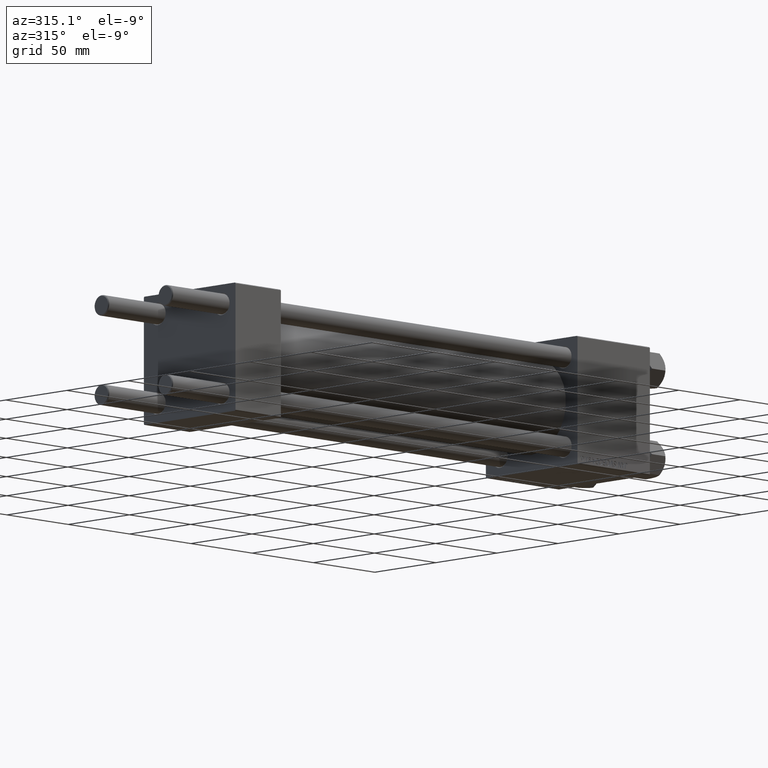
[diagram: clean part render]
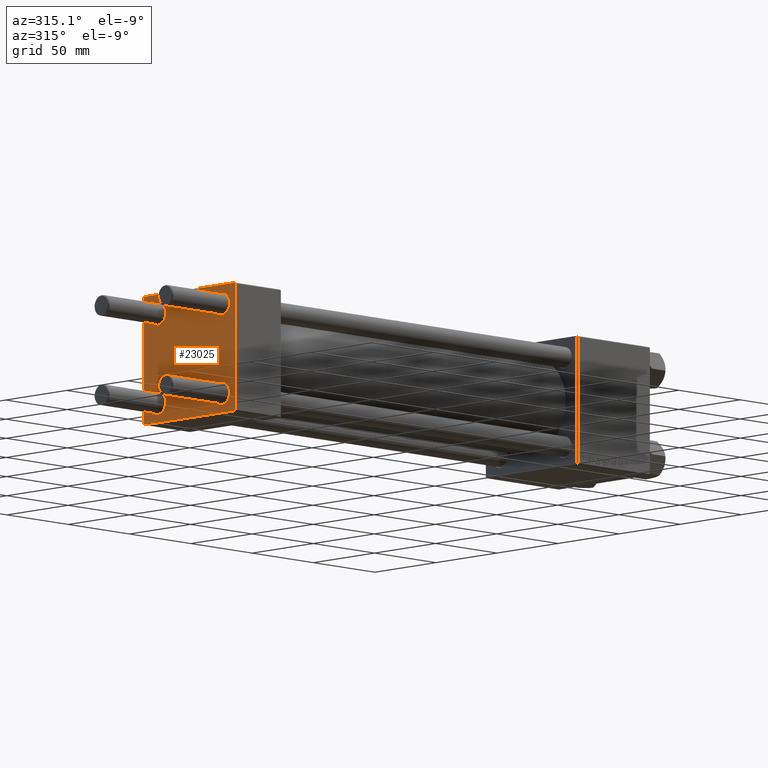
[diagram: same view with one face highlighted and labeled with its STEP entity id]
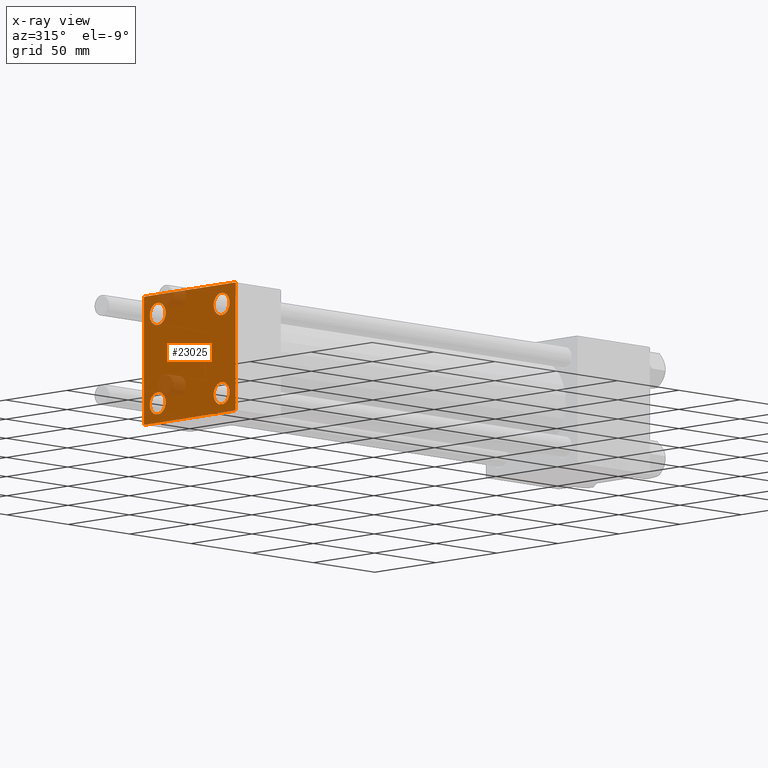
[diagram: x-ray of the same camera — body ghosted, the highlighted face saturated]
A machine part, auxiliary view. The second image highlights one B-rep face of the part: STEP entity #23025.
The next image is the same camera in x-ray: the body ghosted, the highlighted face saturated — about 8% of this face is hidden behind the body in this view.
In plain terms, the highlighted planar face has unit normal (-1, 0, 0).
Its self-contained STEP definition (entity closure, byte-faithful):
#508 = CIRCLE ( 'NONE', #9371, 6.500000000000023093 ) ;
#772 = CIRCLE ( 'NONE', #29800, 6.500000000000023093 ) ;
#1084 = EDGE_CURVE ( 'NONE', #6954, #1653, #20436, .T. ) ;
#1541 = VECTOR ( 'NONE', #11533, 1000.000000000000000 ) ;
#1653 = VERTEX_POINT ( 'NONE', #20803 ) ;
#1972 = AXIS2_PLACEMENT_3D ( 'NONE', #31772, #35054, #19404 ) ;
#2709 = CARTESIAN_POINT ( 'NONE',  ( 0.000000000000000000, -37.24999999999975842, -37.25000000000027001 ) ) ;
#3071 = ORIENTED_EDGE ( 'NONE', *, *, #1084, .T. ) ;
#3298 = AXIS2_PLACEMENT_3D ( 'NONE', #26902, #11999, #19830 ) ;
#3645 = VECTOR ( 'NONE', #17709, 1000.000000000000000 ) ;
#3758 = EDGE_CURVE ( 'NONE', #43962, #7169, #772, .T. ) ;
#4235 = ORIENTED_EDGE ( 'NONE', *, *, #27655, .T. ) ;
#4237 = CARTESIAN_POINT ( 'NONE',  ( 0.000000000000000000, 26.14999999999999858, 26.15000000000000213 ) ) ;
#4664 = FACE_BOUND ( 'NONE', #45915, .T. ) ;
#5030 = DIRECTION ( 'NONE',  ( 0.000000000000000000, 0.000000000000000000, 1.000000000000000000 ) ) ;
#5090 = CARTESIAN_POINT ( 'NONE',  ( 0.000000000000000000, -26.14999999999999147, 26.15000000000000924 ) ) ;
#5263 = CARTESIAN_POINT ( 'NONE',  ( 0.000000000000000000, 26.14999999999999858, 19.64999999999998437 ) ) ;
#5805 = AXIS2_PLACEMENT_3D ( 'NONE', #45360, #49387, #41327 ) ;
#6695 = ORIENTED_EDGE ( 'NONE', *, *, #36704, .T. ) ;
#6954 = VERTEX_POINT ( 'NONE', #24999 ) ;
#7169 = VERTEX_POINT ( 'NONE', #43851 ) ;
#7288 = EDGE_CURVE ( 'NONE', #23763, #1653, #38529, .T. ) ;
#7313 = CARTESIAN_POINT ( 'NONE',  ( 0.000000000000000000, 26.14999999999999858, -26.15000000000000213 ) ) ;
#7707 = PLANE ( 'NONE',  #3298 ) ;
#7845 = VERTEX_POINT ( 'NONE', #25262 ) ;
#8447 = EDGE_LOOP ( 'NONE', ( #38399, #26246 ) ) ;
#9371 = AXIS2_PLACEMENT_3D ( 'NONE', #5090, #40673, #35658 ) ;
#9801 = LINE ( 'NONE', #25203, #19959 ) ;
#11079 = EDGE_LOOP ( 'NONE', ( #42274, #45895 ) ) ;
#11480 = VECTOR ( 'NONE', #18120, 1000.000000000000000 ) ;
#11500 = FACE_BOUND ( 'NONE', #8447, .T. ) ;
#11533 = DIRECTION ( 'NONE',  ( 0.000000000000000000, -1.000000000000000000, -9.251858538542971581E-17 ) ) ;
#11917 = EDGE_LOOP ( 'NONE', ( #34391, #21610 ) ) ;
#11999 = DIRECTION ( 'NONE',  ( -1.000000000000000000, 0.000000000000000000, -0.000000000000000000 ) ) ;
#13056 = VERTEX_POINT ( 'NONE', #15122 ) ;
#13483 = EDGE_CURVE ( 'NONE', #20319, #47296, #32402, .T. ) ;
#13631 = VERTEX_POINT ( 'NONE', #33653 ) ;
#14897 = CARTESIAN_POINT ( 'NONE',  ( 0.000000000000000000, -37.00000000000002132, -37.50000000000000711 ) ) ;
#15035 = CARTESIAN_POINT ( 'NONE',  ( 0.000000000000000000, 37.49999999999999289, 37.00000000000000000 ) ) ;
#15122 = CARTESIAN_POINT ( 'NONE',  ( 0.000000000000000000, -26.14999999999999147, 19.64999999999999147 ) ) ;
#15630 = ORIENTED_EDGE ( 'NONE', *, *, #7288, .F. ) ;
#16645 = DIRECTION ( 'NONE',  ( -0.000000000000000000, 0.7071067811865474617, 0.7071067811865474617 ) ) ;
#17658 = DIRECTION ( 'NONE',  ( 0.000000000000000000, 0.7071067811865474617, -0.7071067811865474617 ) ) ;
#17709 = DIRECTION ( 'NONE',  ( 0.000000000000000000, -1.000000000000000000, -9.251858538542972814E-17 ) ) ;
#18120 = DIRECTION ( 'NONE',  ( 0.000000000000000000, -0.7071067811865524577, 0.7071067811865426878 ) ) ;
#18652 = CARTESIAN_POINT ( 'NONE',  ( 0.000000000000000000, 26.14999999999999858, -19.64999999999998792 ) ) ;
#19119 = CARTESIAN_POINT ( 'NONE',  ( 0.000000000000000000, 26.14999999999999858, -32.65000000000001990 ) ) ;
#19404 = DIRECTION ( 'NONE',  ( 0.000000000000000000, 0.000000000000000000, 1.000000000000000000 ) ) ;
#19449 = AXIS2_PLACEMENT_3D ( 'NONE', #25728, #44895, #32792 ) ;
#19830 = DIRECTION ( 'NONE',  ( -0.000000000000000000, 0.000000000000000000, 1.000000000000000000 ) ) ;
#19959 = VECTOR ( 'NONE', #40593, 1000.000000000000000 ) ;
#20240 = EDGE_CURVE ( 'NONE', #6954, #29141, #44899, .T. ) ;
#20319 = VERTEX_POINT ( 'NONE', #18652 ) ;
#20436 = LINE ( 'NONE', #27790, #36944 ) ;
#20803 = CARTESIAN_POINT ( 'NONE',  ( 0.000000000000000000, -37.00000000000000711, 37.49999999999999289 ) ) ;
#20939 = VERTEX_POINT ( 'NONE', #24730 ) ;
#20978 = EDGE_CURVE ( 'NONE', #23763, #39329, #35850, .T. ) ;
#21300 = CIRCLE ( 'NONE', #36612, 6.500000000000015987 ) ;
#21610 = ORIENTED_EDGE ( 'NONE', *, *, #3758, .T. ) ;
#22175 = DIRECTION ( 'NONE',  ( 1.000000000000000000, -0.000000000000000000, 0.000000000000000000 ) ) ;
#23025 = ADVANCED_FACE ( 'NONE', ( #11500, #4664, #39253, #42273, #43027 ), #7707, .T. ) ;
#23056 = EDGE_CURVE ( 'NONE', #7169, #43962, #39578, .T. ) ;
#23763 = VERTEX_POINT ( 'NONE', #25854 ) ;
#24730 = CARTESIAN_POINT ( 'NONE',  ( 0.000000000000000000, -26.14999999999999147, -19.64999999999999503 ) ) ;
#24999 = CARTESIAN_POINT ( 'NONE',  ( 0.000000000000000000, -37.50000000000000711, 36.99999999999999289 ) ) ;
#25203 = CARTESIAN_POINT ( 'NONE',  ( 0.000000000000000000, 37.49999999999999289, 37.50000000000000000 ) ) ;
#25262 = CARTESIAN_POINT ( 'NONE',  ( 0.000000000000000000, -26.14999999999999147, 32.65000000000003411 ) ) ;
#25728 = CARTESIAN_POINT ( 'NONE',  ( 0.000000000000000000, 26.14999999999999858, 26.15000000000000213 ) ) ;
#25854 = CARTESIAN_POINT ( 'NONE',  ( 0.000000000000000000, 36.99999999999999289, 37.50000000000000000 ) ) ;
#26236 = CARTESIAN_POINT ( 'NONE',  ( 0.000000000000000000, -37.50000000000000711, 37.49999999999999289 ) ) ;
#26246 = ORIENTED_EDGE ( 'NONE', *, *, #40104, .T. ) ;
#26721 = AXIS2_PLACEMENT_3D ( 'NONE', #43637, #35345, #5030 ) ;
#26725 = ORIENTED_EDGE ( 'NONE', *, *, #20978, .T. ) ;
#26841 = DIRECTION ( 'NONE',  ( -0.000000000000000000, -0.7071067811865474617, -0.7071067811865474617 ) ) ;
#26902 = CARTESIAN_POINT ( 'NONE',  ( 0.000000000000000000, 0.000000000000000000, 0.000000000000000000 ) ) ;
#27394 = ORIENTED_EDGE ( 'NONE', *, *, #20240, .F. ) ;
#27564 = ORIENTED_EDGE ( 'NONE', *, *, #40042, .T. ) ;
#27655 = EDGE_CURVE ( 'NONE', #39568, #20939, #48467, .T. ) ;
#27790 = CARTESIAN_POINT ( 'NONE',  ( -0.000000000000000000, -37.25000000000000000, 37.25000000000000000 ) ) ;
#28587 = CIRCLE ( 'NONE', #1972, 6.500000000000023093 ) ;
#29141 = VERTEX_POINT ( 'NONE', #38406 ) ;
#29391 = CARTESIAN_POINT ( 'NONE',  ( 0.000000000000000000, -26.14999999999999147, -32.65000000000002700 ) ) ;
#29769 = DIRECTION ( 'NONE',  ( 0.000000000000000000, 9.251858538542971581E-17, -1.000000000000000000 ) ) ;
#29800 = AXIS2_PLACEMENT_3D ( 'NONE', #4237, #43337, #39559 ) ;
#29873 = EDGE_CURVE ( 'NONE', #46988, #29141, #37298, .T. ) ;
#30025 = ORIENTED_EDGE ( 'NONE', *, *, #44149, .T. ) ;
#30030 = CIRCLE ( 'NONE', #43693, 6.500000000000015987 ) ;
#30620 = LINE ( 'NONE', #34913, #45550 ) ;
#31772 = CARTESIAN_POINT ( 'NONE',  ( 0.000000000000000000, -26.14999999999999147, 26.15000000000000924 ) ) ;
#32402 = CIRCLE ( 'NONE', #5805, 6.500000000000015987 ) ;
#32591 = CARTESIAN_POINT ( 'NONE',  ( 0.000000000000000000, 36.99999999999997868, -37.50000000000000000 ) ) ;
#32792 = DIRECTION ( 'NONE',  ( 0.000000000000000000, 0.000000000000000000, 1.000000000000000000 ) ) ;
#33653 = CARTESIAN_POINT ( 'NONE',  ( 0.000000000000000000, 37.49999999999999289, -36.99999999999998579 ) ) ;
#33786 = DIRECTION ( 'NONE',  ( 0.000000000000000000, 0.000000000000000000, 1.000000000000000000 ) ) ;
#33912 = VECTOR ( 'NONE', #17658, 1000.000000000000114 ) ;
#34391 = ORIENTED_EDGE ( 'NONE', *, *, #23056, .T. ) ;
#34821 = DIRECTION ( 'NONE',  ( 1.000000000000000000, -0.000000000000000000, 0.000000000000000000 ) ) ;
#34913 = CARTESIAN_POINT ( 'NONE',  ( 0.000000000000000000, 37.24999999999998579, -37.24999999999998579 ) ) ;
#35054 = DIRECTION ( 'NONE',  ( 1.000000000000000000, -0.000000000000000000, 0.000000000000000000 ) ) ;
#35345 = DIRECTION ( 'NONE',  ( 1.000000000000000000, -0.000000000000000000, 0.000000000000000000 ) ) ;
#35460 = EDGE_CURVE ( 'NONE', #7845, #13056, #28587, .T. ) ;
#35658 = DIRECTION ( 'NONE',  ( 0.000000000000000000, 0.000000000000000000, 1.000000000000000000 ) ) ;
#35850 = LINE ( 'NONE', #44902, #33912 ) ;
#36612 = AXIS2_PLACEMENT_3D ( 'NONE', #7313, #34821, #38855 ) ;
#36704 = EDGE_CURVE ( 'NONE', #43767, #46988, #48233, .T. ) ;
#36944 = VECTOR ( 'NONE', #16645, 1000.000000000000114 ) ;
#37095 = ORIENTED_EDGE ( 'NONE', *, *, #29873, .T. ) ;
#37298 = LINE ( 'NONE', #2709, #11480 ) ;
#38286 = CARTESIAN_POINT ( 'NONE',  ( 0.000000000000000000, 37.49999999999999289, 37.50000000000000000 ) ) ;
#38399 = ORIENTED_EDGE ( 'NONE', *, *, #35460, .T. ) ;
#38406 = CARTESIAN_POINT ( 'NONE',  ( 0.000000000000000000, -37.50000000000000000, -37.00000000000003553 ) ) ;
#38529 = LINE ( 'NONE', #38286, #1541 ) ;
#38855 = DIRECTION ( 'NONE',  ( 0.000000000000000000, 0.000000000000000000, 1.000000000000000000 ) ) ;
#39253 = FACE_BOUND ( 'NONE', #11079, .T. ) ;
#39329 = VERTEX_POINT ( 'NONE', #15035 ) ;
#39559 = DIRECTION ( 'NONE',  ( 0.000000000000000000, 0.000000000000000000, 1.000000000000000000 ) ) ;
#39568 = VERTEX_POINT ( 'NONE', #29391 ) ;
#39578 = CIRCLE ( 'NONE', #19449, 6.500000000000023093 ) ;
#40042 = EDGE_CURVE ( 'NONE', #13631, #43767, #30620, .T. ) ;
#40104 = EDGE_CURVE ( 'NONE', #13056, #7845, #508, .T. ) ;
#40593 = DIRECTION ( 'NONE',  ( 0.000000000000000000, 0.000000000000000000, -1.000000000000000000 ) ) ;
#40673 = DIRECTION ( 'NONE',  ( 1.000000000000000000, -0.000000000000000000, 0.000000000000000000 ) ) ;
#41327 = DIRECTION ( 'NONE',  ( 0.000000000000000000, 0.000000000000000000, 1.000000000000000000 ) ) ;
#42273 = FACE_BOUND ( 'NONE', #11917, .T. ) ;
#42274 = ORIENTED_EDGE ( 'NONE', *, *, #13483, .T. ) ;
#43027 = FACE_OUTER_BOUND ( 'NONE', #48088, .T. ) ;
#43175 = EDGE_CURVE ( 'NONE', #39329, #13631, #9801, .T. ) ;
#43337 = DIRECTION ( 'NONE',  ( 1.000000000000000000, -0.000000000000000000, 0.000000000000000000 ) ) ;
#43637 = CARTESIAN_POINT ( 'NONE',  ( 0.000000000000000000, -26.14999999999999147, -26.15000000000000924 ) ) ;
#43693 = AXIS2_PLACEMENT_3D ( 'NONE', #45869, #22175, #33786 ) ;
#43767 = VERTEX_POINT ( 'NONE', #32591 ) ;
#43851 = CARTESIAN_POINT ( 'NONE',  ( 0.000000000000000000, 26.14999999999999858, 32.65000000000002700 ) ) ;
#43962 = VERTEX_POINT ( 'NONE', #5263 ) ;
#44149 = EDGE_CURVE ( 'NONE', #20939, #39568, #30030, .T. ) ;
#44200 = CARTESIAN_POINT ( 'NONE',  ( 0.000000000000000000, 37.49999999999999289, -37.50000000000000000 ) ) ;
#44895 = DIRECTION ( 'NONE',  ( 1.000000000000000000, -0.000000000000000000, 0.000000000000000000 ) ) ;
#44899 = LINE ( 'NONE', #26236, #49158 ) ;
#44902 = CARTESIAN_POINT ( 'NONE',  ( 0.000000000000000000, 37.24999999999999289, 37.24999999999999289 ) ) ;
#45360 = CARTESIAN_POINT ( 'NONE',  ( 0.000000000000000000, 26.14999999999999858, -26.15000000000000213 ) ) ;
#45550 = VECTOR ( 'NONE', #26841, 1000.000000000000114 ) ;
#45869 = CARTESIAN_POINT ( 'NONE',  ( 0.000000000000000000, -26.14999999999999147, -26.15000000000000924 ) ) ;
#45895 = ORIENTED_EDGE ( 'NONE', *, *, #49155, .T. ) ;
#45915 = EDGE_LOOP ( 'NONE', ( #30025, #4235 ) ) ;
#46988 = VERTEX_POINT ( 'NONE', #14897 ) ;
#47296 = VERTEX_POINT ( 'NONE', #19119 ) ;
#48088 = EDGE_LOOP ( 'NONE', ( #49169, #27564, #6695, #37095, #27394, #3071, #15630, #26725 ) ) ;
#48233 = LINE ( 'NONE', #44200, #3645 ) ;
#48467 = CIRCLE ( 'NONE', #26721, 6.500000000000015987 ) ;
#49155 = EDGE_CURVE ( 'NONE', #47296, #20319, #21300, .T. ) ;
#49158 = VECTOR ( 'NONE', #29769, 1000.000000000000000 ) ;
#49169 = ORIENTED_EDGE ( 'NONE', *, *, #43175, .T. ) ;
#49387 = DIRECTION ( 'NONE',  ( 1.000000000000000000, -0.000000000000000000, 0.000000000000000000 ) ) ;